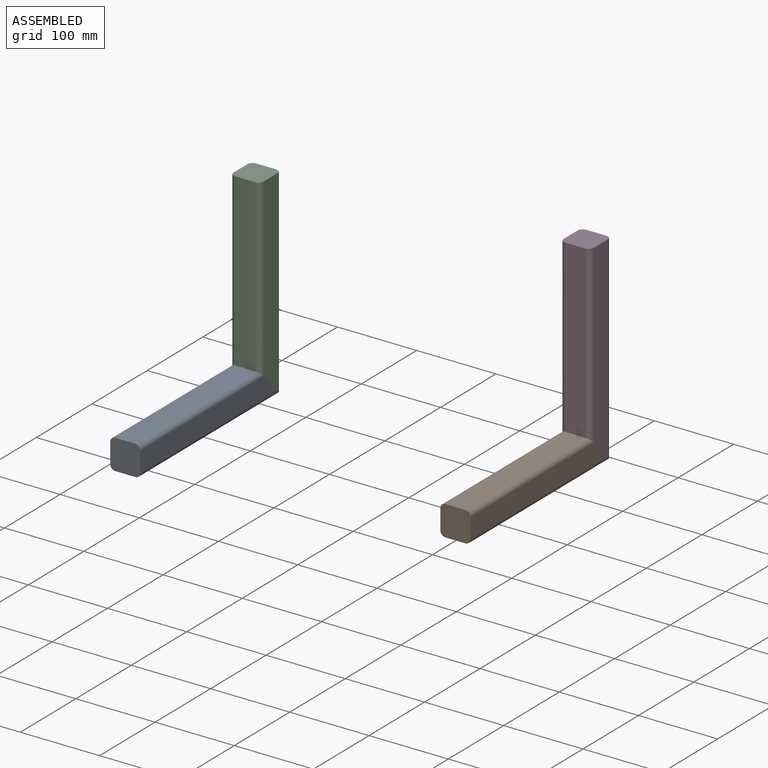
[diagram: assembled view]
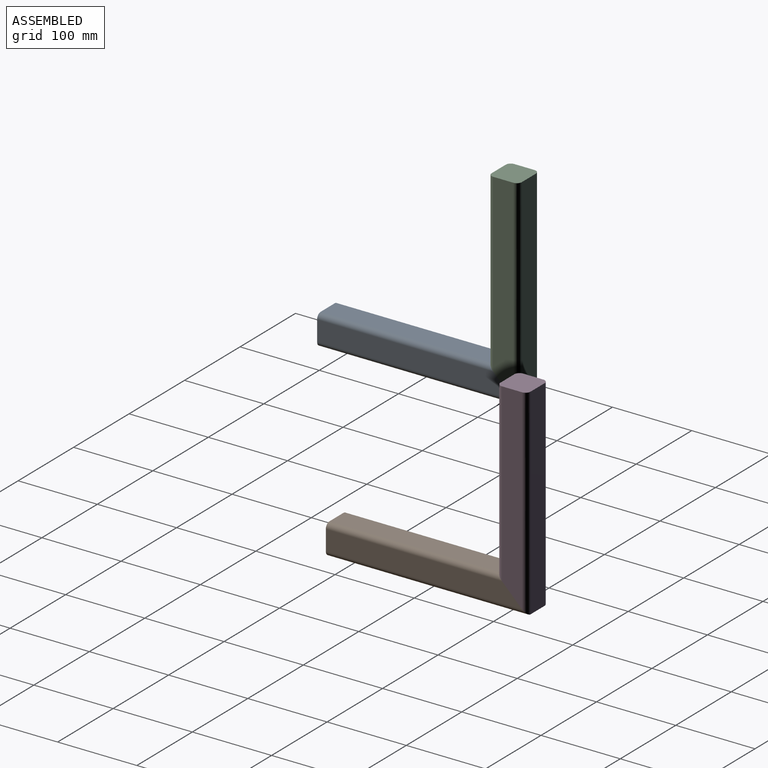
[diagram: assembled view, second angle]
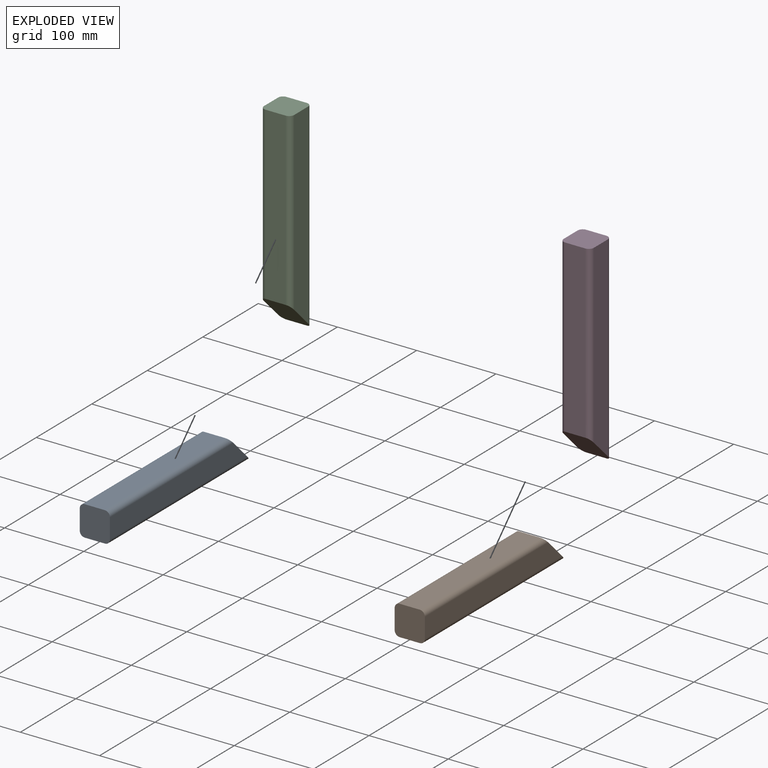
[diagram: exploded view]
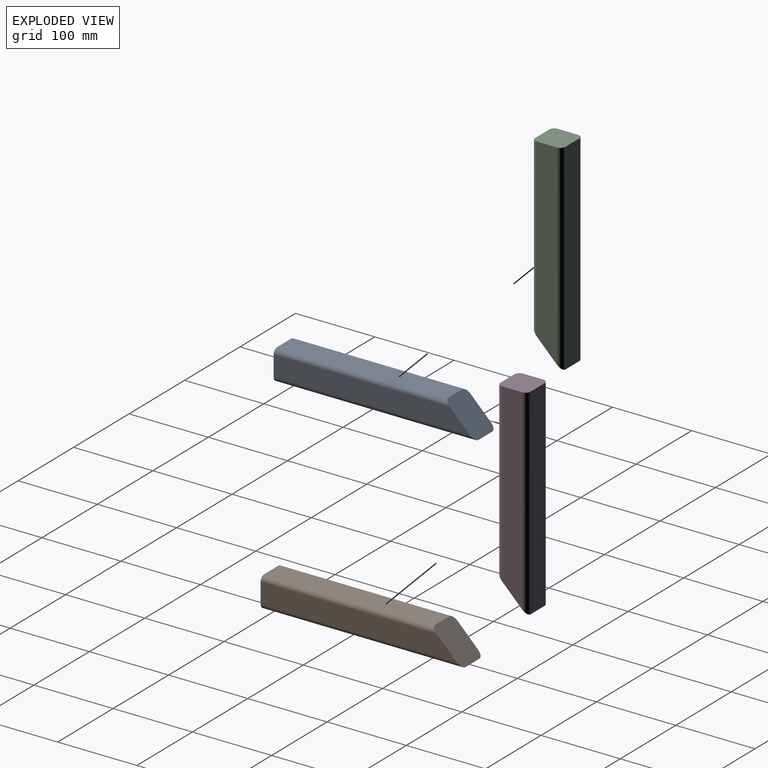
[diagram: exploded view, second angle]
ASSEMBLY  parts=4 mates=2
PART A: 10 faces, bbox 38.1x38.1x254 mm
  f0: plane 215.86x25.4mm, normal (0,-1,0), area 5482.8mm2, adj f1,f7,f8,f9
  f1: cylinder r=6.35mm len=222.21mm, axis (0,0,-1), area 2176.1mm2, adj f0,f2,f8,f9
  f2: plane 247.61x25.4mm, normal (1,0,0), area 5966.7mm2, adj f1,f3,f8,f9
  f3: cylinder r=6.35mm len=253.96mm, axis (0,0,-1), area 2510.1mm2, adj f2,f4,f8,f9
  f4: plane 253.96x25.4mm, normal (0,1,0), area 6450.6mm2, adj f3,f5,f8,f9
  f5: cylinder r=6.35mm len=253.96mm, axis (0,0,-1), area 2510.1mm2, adj f4,f6,f8,f9
  f6: plane 247.61x25.4mm, normal (-1,0,0), area 5966.7mm2, adj f5,f7,f8,f9
  f7: cylinder r=6.35mm len=222.21mm, axis (0,0,-1), area 2176.1mm2, adj f0,f6,f8,f9
  f8: plane 38.1x38.1mm, normal (0,0,1), area 1417mm2, adj f0,f1,f2,f3,f4,f5,f6,f7
  f9: plane 38.1x38.1mm, normal (0,-0.71,-0.71), area 2003.9mm2, adj f0,f1,f2,f3,f4,f5,f6,f7
PART B: same geometry as A
PART C: same geometry as A
PART D: same geometry as A
PLACE A rot(axis=(0,-0.71,0.71),180deg) t=(-61.8,31.45,-35.87)mm
PLACE B rot(axis=(0,-0.71,0.71),180deg) t=(212.57,234.62,-115.75)mm
PLACE C t=(-61.8,12.36,-54.96)mm
PLACE D t=(212.57,215.53,-134.84)mm
MATE fastened B.f9 <-> D.f9  axis (0,0.71,0.71) through (212.57,215.53,-115.75)mm
MATE fastened A.f9 <-> C.f9  axis (0,0.71,0.71) through (-61.8,12.36,-35.87)mm
